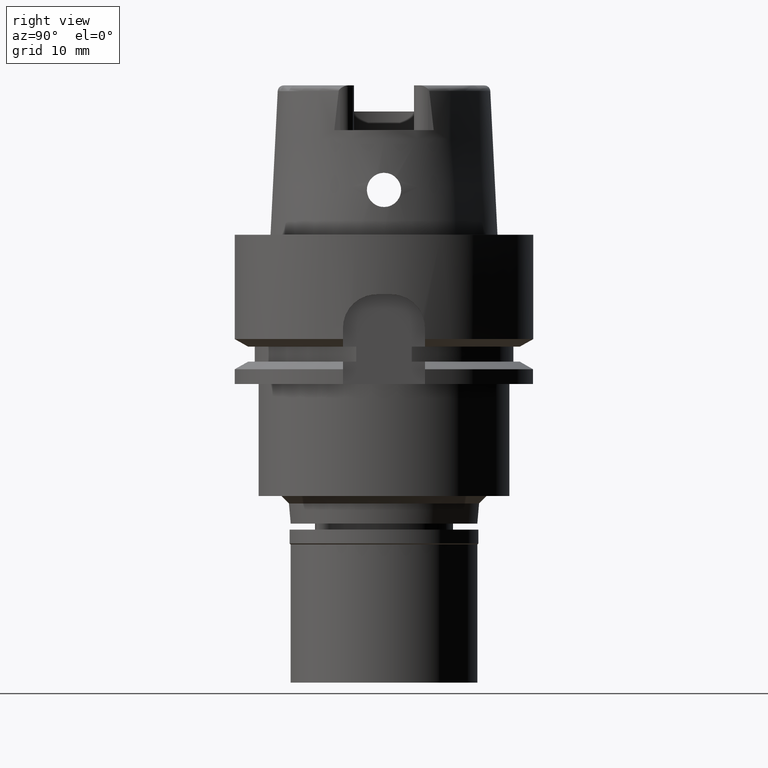
[diagram: clean part render]
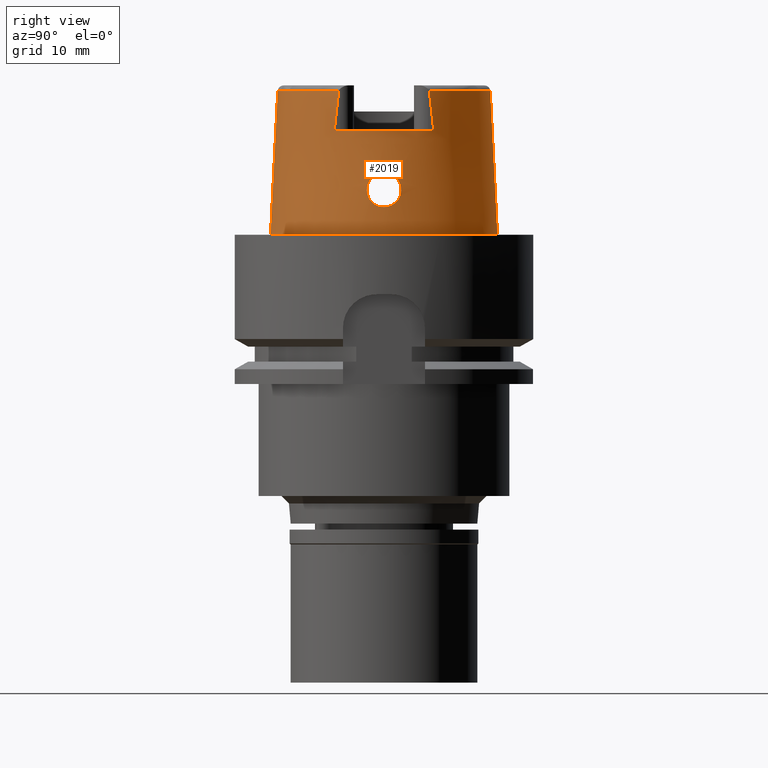
[diagram: same view with one face highlighted and labeled with its STEP entity id]
A machine part, right view. The second image highlights one B-rep face of the part: STEP entity #2019.
In plain terms, the highlighted conical surface has half-angle 2.862 deg.
Its self-contained STEP definition (entity closure, byte-faithful):
#3 = CARTESIAN_POINT ( 'NONE',  ( 14.70884834798660812, 2.286205315762714019, 6.292987651990300968 ) ) ;
#71 = CARTESIAN_POINT ( 'NONE',  ( 14.78353128680934780, -0.2842508077835871338, 8.287348239703142383 ) ) ;
#102 = CARTESIAN_POINT ( 'NONE',  ( 14.76781784534300179, -0.8726212665700366911, 8.128040841715369780 ) ) ;
#108 = CARTESIAN_POINT ( 'NONE',  ( 14.98148096618578684, 0.8665457444468621651, 3.869470621995149795 ) ) ;
#135 = CARTESIAN_POINT ( 'NONE',  ( 14.85758912622376116, -1.829465614575531029, 4.604014456383411336 ) ) ;
#136 = DIRECTION ( 'NONE',  ( 0.9046212760392207120, -0.4262163147243098749, 0.0000000000000000000 ) ) ;
#140 = CARTESIAN_POINT ( 'NONE',  ( 14.87669115224341709, 1.724760763707318123, 4.476552553082335351 ) ) ;
#158 = CARTESIAN_POINT ( 'NONE',  ( 14.72980081961681087, -1.616212748003853727, 7.636443271970279945 ) ) ;
#187 = CARTESIAN_POINT ( 'NONE',  ( 14.72895214010360831, -1.629820688235393833, 7.622863067295217121 ) ) ;
#193 = CARTESIAN_POINT ( 'NONE',  ( 14.71589640493664142, 1.851366427317992835, 7.367163868592538911 ) ) ;
#219 = CARTESIAN_POINT ( 'NONE',  ( 14.72916548330934638, -1.626404356299882892, 7.626288619780838829 ) ) ;
#242 = CARTESIAN_POINT ( 'NONE',  ( 14.83552753177912109, -1.939738082404806052, 4.764066888185314319 ) ) ;
#372 = CARTESIAN_POINT ( 'NONE',  ( 14.81276530912530376, 2.042075185751323740, 4.941057186217218344 ) ) ;
#393 = FACE_OUTER_BOUND ( 'NONE', #2035, .T. ) ;
#398 = CARTESIAN_POINT ( 'NONE',  ( 14.98371403018677483, 0.8374727235060828168, 3.857867046279936929 ) ) ;
#420 = DIRECTION ( 'NONE',  ( 0.0000000000000000000, -1.000000000000000000, 0.0000000000000000000 ) ) ;
#426 = CARTESIAN_POINT ( 'NONE',  ( 14.77594883662318637, 2.186224250497776467, 5.266873562246448870 ) ) ;
#452 = CARTESIAN_POINT ( 'NONE',  ( 14.93067085953368789, 1.362081213815593772, 4.144859030776751219 ) ) ;
#533 = VERTEX_POINT ( 'NONE', #5331 ) ;
#554 = CARTESIAN_POINT ( 'NONE',  ( 14.76871277928789716, -0.8491451473262121574, 8.137552740377595129 ) ) ;
#560 = CARTESIAN_POINT ( 'NONE',  ( 14.83348555201899899, 1.949410989434698038, 4.777198438805157821 ) ) ;
#583 = CARTESIAN_POINT ( 'NONE',  ( 14.74979801730460949, -1.265122560551811493, 7.920811763709590281 ) ) ;
#584 = DIRECTION ( 'NONE',  ( 0.0000000000000000000, 0.0000000000000000000, -1.000000000000000000 ) ) ;
#588 = CARTESIAN_POINT ( 'NONE',  ( 14.74496504134874719, 1.355034789440248799, 7.858533769056999851 ) ) ;
#609 = CARTESIAN_POINT ( 'NONE',  ( 14.70734865897784260, -2.012829096110601679, 7.114972761336104234 ) ) ;
#613 = CARTESIAN_POINT ( 'NONE',  ( 14.72809239045508178, 1.644127852899764930, 7.608383307052595690 ) ) ;
#634 = CARTESIAN_POINT ( 'NONE',  ( 14.76141212801586455, -2.229000420779350122, 5.427573020362298273 ) ) ;
#642 = CARTESIAN_POINT ( 'NONE',  ( 14.74746264624862313, 1.308959093175378730, 7.891234945837613424 ) ) ;
#664 = CARTESIAN_POINT ( 'NONE',  ( 14.82171604948061017, -2.003677436401228196, 4.869988757427218040 ) ) ;
#668 = CARTESIAN_POINT ( 'NONE',  ( 14.78499286951999636, 0.2787127313286555386, 8.300000000000004263 ) ) ;
#685 = CARTESIAN_POINT ( 'NONE',  ( 14.74943395429339965, -1.272009482207280051, 7.916246199872477796 ) ) ;
#712 = CARTESIAN_POINT ( 'NONE',  ( 14.95814736307774773, -1.125923090369231216, 3.993190079444903340 ) ) ;
#744 = CARTESIAN_POINT ( 'NONE',  ( 15.01500049747999910, 0.0000000000000000000, 3.700000000000000178 ) ) ;
#787 = CARTESIAN_POINT ( 'NONE',  ( 14.91762709435253242, 1.459190661110717491, 4.221667655721447865 ) ) ;
#810 = CARTESIAN_POINT ( 'NONE',  ( 0.0000000000000000000, 1.342457523729000028E-14, 9.619975707600000092 ) ) ;
#846 = CARTESIAN_POINT ( 'NONE',  ( 14.80064675282035047, 2.092115382990954675, 5.044267703016496185 ) ) ;
#872 = CARTESIAN_POINT ( 'NONE',  ( 14.70294343544076199, 2.140333083698386041, 6.842061476059803304 ) ) ;
#917 = CARTESIAN_POINT ( 'NONE',  ( 0.0000000000000000000, 1.459778984583999657E-14, 19.23995141520000018 ) ) ;
#945 = CARTESIAN_POINT ( 'NONE',  ( 14.78499286952000169, -0.1391443178106435696, 8.300000000000004263 ) ) ;
#977 = CARTESIAN_POINT ( 'NONE',  ( 14.88524741299193899, 1.673832983257152351, 4.420767604272294093 ) ) ;
#1001 = CARTESIAN_POINT ( 'NONE',  ( 14.87704102443295895, -1.720762379260878605, 4.473081528567432130 ) ) ;
#1013 = AXIS2_PLACEMENT_3D ( 'NONE', #5401, #3719, #4154 ) ;
#1032 = CARTESIAN_POINT ( 'NONE',  ( 14.72948462022060490, -1.621288160458078442, 7.631394471253989842 ) ) ;
#1036 = CARTESIAN_POINT ( 'NONE',  ( 14.73566080914286580, 1.519391864529637370, 7.727097925152691005 ) ) ;
#1057 = CARTESIAN_POINT ( 'NONE',  ( 14.72809821711131661, -2.300253994376866729, 5.867101065373637070 ) ) ;
#1061 = CARTESIAN_POINT ( 'NONE',  ( 14.78499286951999991, -6.884507511411997731E-14, 8.300000000000000711 ) ) ;
#1087 = CARTESIAN_POINT ( 'NONE',  ( 14.78936246628043705, -2.135424661762108212, 5.145562157656038416 ) ) ;
#1094 = CARTESIAN_POINT ( 'NONE',  ( 14.74806662226026077, 1.297686443530055467, 7.898955230017068452 ) ) ;
#1113 = CARTESIAN_POINT ( 'NONE',  ( 14.75228631504130661, -1.217310660985102544, 7.951655185243266644 ) ) ;
#1118 = CARTESIAN_POINT ( 'NONE',  ( 14.76711544728780723, 0.8906701632827568327, 8.120547637668753538 ) ) ;
#1126 = LINE ( 'NONE', #2833, #2069 ) ;
#1248 = CARTESIAN_POINT ( 'NONE',  ( 14.97158300251817842, -0.9853043043074320995, 3.921252939951850980 ) ) ;
#1271 = CARTESIAN_POINT ( 'NONE',  ( 14.89626255972978264, 1.604314165349137733, 4.351879905648150526 ) ) ;
#1297 = CARTESIAN_POINT ( 'NONE',  ( 14.70267385795741966, 2.192066129368408500, 6.697352079336138075 ) ) ;
#1322 = B_SPLINE_CURVE_WITH_KNOTS ( 'NONE', 3,
 ( #2215, #945, #71, #5226, #1787, #4373, #2989, #3945, #554, #1396, #102, #1824, #4402, #4702, #3166, #4060, #3213, #1113, #4920, #583, #685, #1530, #2299, #3608, #4004, #4869, #2763, #158, #1032, #219, #5310, #2818, #187, #4438, #1934, #5280, #2742, #5253, #4462, #609, #4838, #1877, #4531, #3189, #2324, #4030, #4946, #1482, #3579, #4488, #4893, #3550, #1423, #1455, #1057, #3631, #1909, #634, #2350, #5333, #1504, #1854, #1087, #2792, #5361, #4510, #1957, #664, #2377, #4082, #242, #3656, #3242, #3977, #135, #3132, #1001, #2715, #4555, #2045, #1983, #1642, #3374, #1578, #712, #3287, #1248, #5503, #3349, #1669, #3708, #5438, #4586, #744 ),
 .UNSPECIFIED., .F., .F.,
 ( 4, 2, 2, 1, 1, 1, 2, 2, 2, 2, 1, 1, 1, 2, 2, 2, 2, 2, 1, 1, 1, 2, 2, 2, 2, 1, 1, 2, 2, 2, 2, 2, 2, 2, 2, 1, 1, 2, 2, 2, 2, 1, 2, 2, 2, 1, 1, 2, 2, 2, 2, 1, 1, 2, 2, 4 ),
 ( 0.0000000000000000000, 0.06250000000019570456, 0.09375000000029362623, 0.1093750000003425871, 0.1171875000003670259, 0.1210937500003791689, 0.1230468750003851225, 0.1250000000003910761, 0.1562500000004830303, 0.1718750000005291878, 0.1796875000005522804, 0.1835937500005638268, 0.1855468750005697387, 0.1865234375005728751, 0.1875000000005760115, 0.2187500000006795120, 0.2343750000007312762, 0.2421875000007574497, 0.2460937500007711887, 0.2480468750007791823, 0.2490234375007831513, 0.2495117187507826517, 0.2500000000007821521, 0.3125000000007183698, 0.3437500000006863399, 0.3593750000006701306, 0.3671875000006618039, 0.3710937500006578627, 0.3750000000006538659, 0.4375000000005919709, 0.4687500000005608847, 0.4843750000005455636, 0.5000000000005301315, 0.5625000000004679590, 0.5937500000004367617, 0.6093750000004212186, 0.6171875000004135581, 0.6210937500004095613, 0.6250000000004055645, 0.6562500000003740341, 0.6718750000003582690, 0.6796875000003503864, 0.6835937500003462786, 0.6875000000003421707, 0.7187500000003099743, 0.7343750000002937650, 0.7421875000002858824, 0.7460937500002817746, 0.7500000000002776668, 0.8125000000002089440, 0.8437500000001744160, 0.8593750000001572076, 0.8671875000001485478, 0.8710937500001442180, 0.8750000000001398881, 1.000000000000000000 ),
 .UNSPECIFIED. ) ;
#1369 = CONICAL_SURFACE ( 'NONE', #4682, 14.71899189528999941, 0.04996004983832824653 ) ;
#1396 = CARTESIAN_POINT ( 'NONE',  ( 14.76817753171319403, -0.8632320482275176454, 8.131866818024022336 ) ) ;
#1402 = CARTESIAN_POINT ( 'NONE',  ( 14.99024636951172162, 0.7469238850255360829, 3.824062172421589079 ) ) ;
#1406 = ORIENTED_EDGE ( 'NONE', *, *, #1766, .T. ) ;
#1423 = CARTESIAN_POINT ( 'NONE',  ( 14.71767625970584881, -2.299002582692895036, 6.076948641595521394 ) ) ;
#1431 = CARTESIAN_POINT ( 'NONE',  ( 15.01500049747999910, 0.0000000000000000000, 3.700000000000000178 ) ) ;
#1455 = CARTESIAN_POINT ( 'NONE',  ( 14.71946357150760498, -2.299931417574677894, 6.038631396491794590 ) ) ;
#1461 = CARTESIAN_POINT ( 'NONE',  ( 14.76533985865924059, 0.9349772983312547581, 8.101496177720878933 ) ) ;
#1482 = CARTESIAN_POINT ( 'NONE',  ( 14.70276236840918926, -2.228093348375105531, 6.589865896510453958 ) ) ;
#1486 = CARTESIAN_POINT ( 'NONE',  ( 14.76094114605789009, 1.037300661243630406, 8.053152699869613684 ) ) ;
#1504 = CARTESIAN_POINT ( 'NONE',  ( 14.78432779017200360, -2.153809964252402231, 5.192649884755313749 ) ) ;
#1507 = CARTESIAN_POINT ( 'NONE',  ( 14.75280736771560264, 1.208700089781218345, 7.958806937004049509 ) ) ;
#1530 = CARTESIAN_POINT ( 'NONE',  ( 14.74919042734249786, -1.276605933416255612, 7.913187108496542166 ) ) ;
#1535 = AXIS2_PLACEMENT_3D ( 'NONE', #917, #3523, #5535 ) ;
#1536 = LINE ( 'NONE', #1961, #2428 ) ;
#1578 = CARTESIAN_POINT ( 'NONE',  ( 14.95142920726499902, -1.189364500588956819, 4.029933525653157211 ) ) ;
#1638 = AXIS2_PLACEMENT_3D ( 'NONE', #4405, #584, #136 ) ;
#1640 = ORIENTED_EDGE ( 'NONE', *, *, #3243, .F. ) ;
#1642 = CARTESIAN_POINT ( 'NONE',  ( 14.91207770429849866, -1.508033510741091154, 4.254843883684625183 ) ) ;
#1659 = CARTESIAN_POINT ( 'NONE',  ( 15.00364376493542551, 0.5092072746806731720, 3.755833491668792767 ) ) ;
#1669 = CARTESIAN_POINT ( 'NONE',  ( 14.97932994340861157, -0.8935037242512267053, 3.880632326865703252 ) ) ;
#1686 = CARTESIAN_POINT ( 'NONE',  ( 15.00009478601523583, 0.5826109664716828673, 3.773707586095184752 ) ) ;
#1718 = CARTESIAN_POINT ( 'NONE',  ( 14.70429371488598669, 2.243043492811253703, 6.514198421688762508 ) ) ;
#1751 = CARTESIAN_POINT ( 'NONE',  ( 0.0000000000000000000, -14.23797715755999782, 19.23995141520000018 ) ) ;
#1766 = EDGE_CURVE ( 'NONE', #3079, #2857, #3967, .T. ) ;
#1778 = CARTESIAN_POINT ( 'NONE',  ( 0.0000000000000000000, 15.20000663301000010, 5.684341886080998387E-14 ) ) ;
#1787 = CARTESIAN_POINT ( 'NONE',  ( 14.77731956028908478, -0.5813496651888623301, 8.226695616749765350 ) ) ;
#1798 = VERTEX_POINT ( 'NONE', #3359 ) ;
#1824 = CARTESIAN_POINT ( 'NONE',  ( 14.76759430107143878, -0.8784006114821019118, 8.125659336874468508 ) ) ;
#1829 = ORIENTED_EDGE ( 'NONE', *, *, #4730, .F. ) ;
#1850 = EDGE_CURVE ( 'NONE', #3200, #5148, #3026, .T. ) ;
#1854 = CARTESIAN_POINT ( 'NONE',  ( 14.78733735408576422, -2.142864407732263388, 5.164395642324983271 ) ) ;
#1877 = CARTESIAN_POINT ( 'NONE',  ( 14.70450261064885744, -2.081531398458294380, 6.979308741385742643 ) ) ;
#1909 = CARTESIAN_POINT ( 'NONE',  ( 14.75496046942780737, -2.246734291453549748, 5.502193996447674706 ) ) ;
#1915 = CARTESIAN_POINT ( 'NONE',  ( 14.72879180672478405, 1.632483996171784746, 7.620184531736852840 ) ) ;
#1934 = CARTESIAN_POINT ( 'NONE',  ( 14.72894505127029774, -1.629935077670802590, 7.622748176182636115 ) ) ;
#1957 = CARTESIAN_POINT ( 'NONE',  ( 14.81742000035763951, -2.022576272778048079, 4.904278878625637716 ) ) ;
#1961 = CARTESIAN_POINT ( 'NONE',  ( 0.0000000000000000000, -14.23797715755999782, 19.23995141520000018 ) ) ;
#1983 = CARTESIAN_POINT ( 'NONE',  ( 14.89100076858903243, -1.637317728023333530, 4.384665109146335560 ) ) ;
#1992 = ORIENTED_EDGE ( 'NONE', *, *, #1850, .T. ) ;
#1994 = EDGE_CURVE ( 'NONE', #2359, #2848, #3070, .T. ) ;
#2019 = ADVANCED_FACE ( 'NONE', ( #393, #4683 ), #1369, .T. ) ;
#2035 = EDGE_LOOP ( 'NONE', ( #2214, #3177, #3588, #1406, #1640, #5265, #1992, #3002 ) ) ;
#2045 = CARTESIAN_POINT ( 'NONE',  ( 14.89006592629558767, -1.643013560709093435, 4.390467205843563647 ) ) ;
#2051 = CARTESIAN_POINT ( 'NONE',  ( 12.87999628661342122, -6.461605149370305945, 15.82216418297479166 ) ) ;
#2069 = VECTOR ( 'NONE', #4294, 1000.000000000000227 ) ;
#2095 = CARTESIAN_POINT ( 'NONE',  ( 14.76163505720337987, 2.230607858128184962, 5.419250816161911288 ) ) ;
#2109 = CARTESIAN_POINT ( 'NONE',  ( 12.87999235482999794, -6.068467509103999902, 19.23976180114000201 ) ) ;
#2118 = CARTESIAN_POINT ( 'NONE',  ( 14.89480408139289835, 1.613594842508850213, 4.360975711331008142 ) ) ;
#2143 = CARTESIAN_POINT ( 'NONE',  ( 14.82509907386347869, 1.988183648684178184, 4.841186137639502007 ) ) ;
#2214 = ORIENTED_EDGE ( 'NONE', *, *, #4533, .T. ) ;
#2215 = CARTESIAN_POINT ( 'NONE',  ( 14.78499286951999991, -6.884507511411997731E-14, 8.300000000000000711 ) ) ;
#2227 = CARTESIAN_POINT ( 'NONE',  ( 12.88000000001000167, 6.659963896840999986, 14.00000000000000000 ) ) ;
#2247 = CARTESIAN_POINT ( 'NONE',  ( 14.90604220457860229, 1.540040924966880276, 4.291568336726134802 ) ) ;
#2281 = CARTESIAN_POINT ( 'NONE',  ( 14.96044863515595935, 1.107243322772910599, 3.978464806295221035 ) ) ;
#2283 = EDGE_LOOP ( 'NONE', ( #3317, #1829 ) ) ;
#2299 = CARTESIAN_POINT ( 'NONE',  ( 14.74915329026594790, -1.277308904772056053, 7.912721628543296859 ) ) ;
#2324 = CARTESIAN_POINT ( 'NONE',  ( 14.70337101300722971, -2.119800079374476898, 6.892472962618038324 ) ) ;
#2329 = CARTESIAN_POINT ( 'NONE',  ( 14.74847246292092606, 1.290096246375824984, 7.904119940134513023 ) ) ;
#2350 = CARTESIAN_POINT ( 'NONE',  ( 14.77198895600194639, -2.195978878831934988, 5.315014128293909401 ) ) ;
#2359 = VERTEX_POINT ( 'NONE', #4225 ) ;
#2358 = CARTESIAN_POINT ( 'NONE',  ( 14.72867472671834221, 1.634432253401980173, 7.618219121032653085 ) ) ;
#2377 = CARTESIAN_POINT ( 'NONE',  ( 14.82848128314058478, -1.972826740579962879, 4.817474388850833122 ) ) ;
#2380 = CARTESIAN_POINT ( 'NONE',  ( 14.72849940320244677, 1.637350214644473834, 7.615270147479063390 ) ) ;
#2404 = VERTEX_POINT ( 'NONE', #4257 ) ;
#2428 = VECTOR ( 'NONE', #3661, 1000.000000000000227 ) ;
#2435 = CARTESIAN_POINT ( 'NONE',  ( 12.88000000001000167, -6.659963896840999986, 14.00000000000000000 ) ) ;
#2468 = CARTESIAN_POINT ( 'NONE',  ( 12.88000426042808577, 6.264427332782261715, 17.56902546104429419 ) ) ;
#2498 = CARTESIAN_POINT ( 'NONE',  ( 14.89874937048043790, 1.588294339997736948, 4.336436091976805685 ) ) ;
#2531 = CARTESIAN_POINT ( 'NONE',  ( 14.79665847415519231, 2.107828384264458066, 5.079440115074616457 ) ) ;
#2557 = CARTESIAN_POINT ( 'NONE',  ( 14.79479495241799469, 2.115032889418538176, 5.096087091493139987 ) ) ;
#2582 = CARTESIAN_POINT ( 'NONE',  ( 14.70307380549220788, 2.133187362036828016, 6.860002858765145817 ) ) ;
#2689 = CARTESIAN_POINT ( 'NONE',  ( 14.85945574196216867, 1.820889407647668490, 4.592856233123024268 ) ) ;
#2715 = CARTESIAN_POINT ( 'NONE',  ( 14.88463421484657800, -1.675827824554474432, 4.424491581681046171 ) ) ;
#2722 = CARTESIAN_POINT ( 'NONE',  ( 14.74279795622872946, 1.394442728223871386, 7.829370843480877973 ) ) ;
#2742 = CARTESIAN_POINT ( 'NONE',  ( 14.72141866946028443, -1.755152768534203211, 7.496973021725292341 ) ) ;
#2745 = CARTESIAN_POINT ( 'NONE',  ( 14.77912791463194786, 0.5826487076375956864, 8.248701685571836251 ) ) ;
#2763 = CARTESIAN_POINT ( 'NONE',  ( 14.73105974217153680, -1.595855065834778985, 7.656383870241845635 ) ) ;
#2769 = CARTESIAN_POINT ( 'NONE',  ( 14.73066733280887952, 1.603003007484241849, 7.651077491294331345 ) ) ;
#2792 = CARTESIAN_POINT ( 'NONE',  ( 14.79060930388553174, -2.130790916911621036, 5.134093906432315890 ) ) ;
#2798 = CARTESIAN_POINT ( 'NONE',  ( 14.75631241698415685, 1.137656487417744167, 8.000363067003027240 ) ) ;
#2818 = CARTESIAN_POINT ( 'NONE',  ( 14.72897168129306067, -1.629507018597964985, 7.623178059539734264 ) ) ;
#2832 = CARTESIAN_POINT ( 'NONE',  ( 12.88000000001000167, 6.659963896840999986, 14.00000000000000000 ) ) ;
#2833 = CARTESIAN_POINT ( 'NONE',  ( 0.0000000000000000000, 14.23797715755999782, 19.23995141520000018 ) ) ;
#2848 = VERTEX_POINT ( 'NONE', #1751 ) ;
#2855 = CARTESIAN_POINT ( 'NONE',  ( 0.0000000000000000000, -15.20000663301000010, 1.527666881883999820E-13 ) ) ;
#2857 = VERTEX_POINT ( 'NONE', #1778 ) ;
#2989 = CARTESIAN_POINT ( 'NONE',  ( 14.77224969526151632, -0.7504315452606894477, 8.174775488229311549 ) ) ;
#3002 = ORIENTED_EDGE ( 'NONE', *, *, #4149, .T. ) ;
#3003 = CARTESIAN_POINT ( 'NONE',  ( 14.70255504530193846, 2.174209788304058311, 6.751929027931112159 ) ) ;
#3024 = DIRECTION ( 'NONE',  ( 0.0000000000000000000, 0.0000000000000000000, -1.000000000000000000 ) ) ;
#3026 = B_SPLINE_CURVE_WITH_KNOTS ( 'NONE', 3,
 ( #4599, #2468, #4094, #2832 ),
 .UNSPECIFIED., .F., .F.,
 ( 4, 4 ),
 ( 0.0000000000000000000, 1.000000000000000000 ),
 .UNSPECIFIED. ) ;
#3070 = CIRCLE ( 'NONE', #1638, 14.23797715756000315 ) ;
#3079 = VERTEX_POINT ( 'NONE', #2855 ) ;
#3109 = CARTESIAN_POINT ( 'NONE',  ( 14.98233880085520298, 0.8555171635388999496, 3.865009476152062362 ) ) ;
#3132 = CARTESIAN_POINT ( 'NONE',  ( 14.87054952517670436, -1.757719365218778362, 4.516135905360576963 ) ) ;
#3166 = CARTESIAN_POINT ( 'NONE',  ( 14.75791429775186536, -1.102961272654618075, 8.018639627108557377 ) ) ;
#3171 = CARTESIAN_POINT ( 'NONE',  ( 14.74608686374362065, 1.334479646751227655, 7.873420511264598964 ) ) ;
#3177 = ORIENTED_EDGE ( 'NONE', *, *, #1994, .T. ) ;
#3189 = CARTESIAN_POINT ( 'NONE',  ( 14.70352691453532046, -2.113722125168135513, 6.906774030889148541 ) ) ;
#3194 = CARTESIAN_POINT ( 'NONE',  ( 14.72890820762632913, 1.630547541446876858, 7.622132767565903855 ) ) ;
#3200 = VERTEX_POINT ( 'NONE', #5425 ) ;
#3206 = DIRECTION ( 'NONE',  ( 0.0000000000000000000, 0.0000000000000000000, -1.000000000000000000 ) ) ;
#3213 = CARTESIAN_POINT ( 'NONE',  ( 14.75363946421451899, -1.190479773372431493, 7.968039648371502359 ) ) ;
#3242 = CARTESIAN_POINT ( 'NONE',  ( 14.83932649246535185, -1.921461049514929131, 4.735849371579420541 ) ) ;
#3243 = EDGE_CURVE ( 'NONE', #533, #2857, #1126, .T. ) ;
#3287 = CARTESIAN_POINT ( 'NONE',  ( 14.96726447614644151, -1.031976710274443265, 3.944210301339806435 ) ) ;
#3317 = ORIENTED_EDGE ( 'NONE', *, *, #4295, .F. ) ;
#3349 = CARTESIAN_POINT ( 'NONE',  ( 14.97809045975354891, -0.9087043565665412492, 3.887105153696834403 ) ) ;
#3359 = CARTESIAN_POINT ( 'NONE',  ( 15.01500049747999910, 0.0000000000000000000, 3.700000000000000178 ) ) ;
#3365 = CARTESIAN_POINT ( 'NONE',  ( 14.93865161753148385, 1.297501775311243666, 4.099437656411337727 ) ) ;
#3374 = CARTESIAN_POINT ( 'NONE',  ( 14.92935449852581620, -1.380129507201574235, 4.153857573810187276 ) ) ;
#3392 = CARTESIAN_POINT ( 'NONE',  ( 14.90244606697565821, 1.564221168210256474, 4.313564913488068697 ) ) ;
#3395 = VERTEX_POINT ( 'NONE', #3924 ) ;
#3426 = CARTESIAN_POINT ( 'NONE',  ( 14.73141587695740462, 2.293502586221564776, 5.823495551252472424 ) ) ;
#3498 = AXIS2_PLACEMENT_3D ( 'NONE', #4050, #3206, #3625 ) ;
#3523 = DIRECTION ( 'NONE',  ( 0.0000000000000000000, 0.0000000000000000000, -1.000000000000000000 ) ) ;
#3550 = CARTESIAN_POINT ( 'NONE',  ( 14.71456559358172811, -2.295400163581996278, 6.149906830063701868 ) ) ;
#3579 = CARTESIAN_POINT ( 'NONE',  ( 14.70725146920118220, -2.271296696667286508, 6.369860449282080950 ) ) ;
#3584 = CARTESIAN_POINT ( 'NONE',  ( 14.70427108765023583, 2.079072153534203604, 6.991204345736832693 ) ) ;
#3588 = ORIENTED_EDGE ( 'NONE', *, *, #4333, .T. ) ;
#3608 = CARTESIAN_POINT ( 'NONE',  ( 14.74230191971250115, -1.406047901650634646, 7.826369459267463746 ) ) ;
#3614 = CARTESIAN_POINT ( 'NONE',  ( 14.72268477588709068, 1.734727623510328165, 7.511263497818259971 ) ) ;
#3625 = DIRECTION ( 'NONE',  ( 0.8882768779220027167, 0.4593083802296007434, 0.0000000000000000000 ) ) ;
#3631 = CARTESIAN_POINT ( 'NONE',  ( 14.73740417387155333, -2.288223965521709147, 5.723351743406544401 ) ) ;
#3636 = CARTESIAN_POINT ( 'NONE',  ( 14.73773361949264782, 1.484091672822593688, 7.758016757747205894 ) ) ;
#3656 = CARTESIAN_POINT ( 'NONE',  ( 14.83794318965353476, -1.928155063096674171, 4.746073152904815018 ) ) ;
#3661 = DIRECTION ( 'NONE',  ( 0.0000000000000000000, -0.04993926899656212642, -0.9987522562738413434 ) ) ;
#3708 = CARTESIAN_POINT ( 'NONE',  ( 14.97982148424780036, -0.8874131963921597643, 3.878068404993340046 ) ) ;
#3719 = DIRECTION ( 'NONE',  ( 0.0000000000000000000, 0.0000000000000000000, 1.000000000000000000 ) ) ;
#3771 = CIRCLE ( 'NONE', #1535, 14.23797715755999782 ) ;
#3790 = CARTESIAN_POINT ( 'NONE',  ( 14.72510000375245909, 2.299199412092552741, 5.929779096513302150 ) ) ;
#3818 = CARTESIAN_POINT ( 'NONE',  ( 14.80665991487999378, 2.067953991456097373, 4.991963697528101207 ) ) ;
#3843 = CARTESIAN_POINT ( 'NONE',  ( 14.72329514493106473, 2.299987528917623703, 5.962788372706077311 ) ) ;
#3917 = B_SPLINE_CURVE_WITH_KNOTS ( 'NONE', 3,
 ( #1431, #5096, #4411, #1659, #1686, #5065, #1402, #4627, #398, #3109, #108, #4689, #2281, #3365, #452, #787, #4818, #2247, #3392, #2498, #1271, #2118, #977, #140, #2689, #4656, #560, #2143, #372, #3818, #846, #2531, #2557, #426, #2095, #5518, #3982, #3426, #4272, #3790, #3843, #4246, #3, #1718, #5129, #1297, #3003, #4713, #872, #2582, #4300, #3584, #4925, #4465, #193, #4443, #3614, #4035, #4008, #613, #2380, #2358, #1915, #3194, #4115, #2769, #1036, #3636, #4493, #2722, #588, #3171, #642, #1094, #2329, #4898, #1507, #2798, #1486, #5287, #4873, #1461, #4537, #5314, #1118, #4515, #2745, #668, #1061 ),
 .UNSPECIFIED., .F., .F.,
 ( 4, 2, 2, 1, 1, 2, 2, 2, 2, 2, 1, 2, 2, 2, 2, 2, 1, 2, 2, 2, 2, 2, 2, 2, 2, 1, 1, 2, 2, 2, 2, 1, 1, 1, 1, 1, 2, 2, 2, 2, 2, 1, 1, 2, 2, 2, 2, 1, 1, 2, 2, 4 ),
 ( 0.0000000000000000000, 0.06249999999988695154, 0.09374999999983045507, 0.1093749999998021444, 0.1171874999997879752, 0.1210937499997809252, 0.1249999999997738753, 0.1874999999996600775, 0.2187499999996031230, 0.2343749999995747568, 0.2421874999995604905, 0.2460937499995533573, 0.2499999999995461963, 0.2812499999994897970, 0.3124999999994333977, 0.3437499999993769428, 0.3593749999993487432, 0.3671874999993345323, 0.3749999999993202660, 0.4374999999992069122, 0.4687499999991500133, 0.4843749999991213695, 0.4999999999990927257, 0.5624999999989778177, 0.5937499999989204191, 0.6093749999988916644, 0.6171874999988773425, 0.6210937499988700150, 0.6249999999988627986, 0.6874999999987452259, 0.7187499999986864951, 0.7343749999986570742, 0.7421874999986423083, 0.7460937499986350918, 0.7480468749986314281, 0.7490234374986296517, 0.7495117187486286525, 0.7499999999986276533, 0.7812499999988007371, 0.7968749999988872235, 0.8046874999989305222, 0.8085937499989522825, 0.8105468749989633848, 0.8115234374989690469, 0.8124999999989747090, 0.8437499999991485700, 0.8593749999992352784, 0.8671874999992786881, 0.8710937499993003374, 0.8730468749993111066, 0.8749999999993218758, 1.000000000000000000 ),
 .UNSPECIFIED. ) ;
#3924 = CARTESIAN_POINT ( 'NONE',  ( 14.78499286951999991, -6.884507511411997731E-14, 8.300000000000000711 ) ) ;
#3945 = CARTESIAN_POINT ( 'NONE',  ( 14.76993171643134062, -0.8162572405157628719, 8.150449937432949099 ) ) ;
#3967 = CIRCLE ( 'NONE', #1013, 15.20000663301000010 ) ;
#3977 = CARTESIAN_POINT ( 'NONE',  ( 14.84897899300126056, -1.874404310356276859, 4.664961216209789541 ) ) ;
#3982 = CARTESIAN_POINT ( 'NONE',  ( 14.73849372625887000, 2.283477778846778605, 5.715463592410985783 ) ) ;
#4004 = CARTESIAN_POINT ( 'NONE',  ( 14.73731322973443270, -1.491757206061370855, 7.752241761626596173 ) ) ;
#4008 = CARTESIAN_POINT ( 'NONE',  ( 14.72728666678593079, 1.657559654261544724, 7.594586816968694976 ) ) ;
#4030 = CARTESIAN_POINT ( 'NONE',  ( 14.70331610145964696, -2.122033033467349394, 6.887168763617625977 ) ) ;
#4035 = CARTESIAN_POINT ( 'NONE',  ( 14.72570842674991098, 1.683931612177709480, 7.566908941513504239 ) ) ;
#4050 = CARTESIAN_POINT ( 'NONE',  ( 0.0000000000000000000, 1.342457523729000028E-14, 14.00000000000000000 ) ) ;
#4060 = CARTESIAN_POINT ( 'NONE',  ( 14.75626720799203895, -1.137456607659073304, 7.999470194620832864 ) ) ;
#4082 = CARTESIAN_POINT ( 'NONE',  ( 14.83194418996444952, -1.956775742090769876, 4.790948031791979034 ) ) ;
#4094 = CARTESIAN_POINT ( 'NONE',  ( 12.88001670702531598, 6.461541546609030462, 15.82237496627156936 ) ) ;
#4115 = CARTESIAN_POINT ( 'NONE',  ( 14.72897162154003681, 1.629492673767413802, 7.623193086129206542 ) ) ;
#4146 = CARTESIAN_POINT ( 'NONE',  ( 12.87998480851645056, -6.264498854164544994, 17.56875134582231368 ) ) ;
#4149 = EDGE_CURVE ( 'NONE', #5148, #2404, #5102, .T. ) ;
#4154 = DIRECTION ( 'NONE',  ( 0.0000000000000000000, -1.000000000000000000, 0.0000000000000000000 ) ) ;
#4225 = CARTESIAN_POINT ( 'NONE',  ( 12.87999235482999794, -6.068467509103999902, 19.23976180114000201 ) ) ;
#4246 = CARTESIAN_POINT ( 'NONE',  ( 14.71406044070898389, 2.300049224763834221, 6.144951639461478266 ) ) ;
#4257 = CARTESIAN_POINT ( 'NONE',  ( 12.88000000001000167, -6.659963896840999986, 14.00000000000000000 ) ) ;
#4272 = CARTESIAN_POINT ( 'NONE',  ( 14.72920898907621279, 2.295956629733523879, 5.859173630892842155 ) ) ;
#4294 = DIRECTION ( 'NONE',  ( 0.0000000000000000000, 0.04993926899656212642, -0.9987522562738413434 ) ) ;
#4295 = EDGE_CURVE ( 'NONE', #1798, #3395, #3917, .T. ) ;
#4300 = CARTESIAN_POINT ( 'NONE',  ( 14.70316458318627717, 2.128786717770733805, 6.870819045355063714 ) ) ;
#4333 = EDGE_CURVE ( 'NONE', #2848, #3079, #1536, .T. ) ;
#4373 = CARTESIAN_POINT ( 'NONE',  ( 14.77403099919012242, -0.6940052000260308329, 8.193146594063835053 ) ) ;
#4402 = CARTESIAN_POINT ( 'NONE',  ( 14.76520709172436163, -0.9397137392346848195, 8.100200529922533477 ) ) ;
#4405 = CARTESIAN_POINT ( 'NONE',  ( 0.0000000000000000000, 1.459778984583999657E-14, 19.23995141520000018 ) ) ;
#4411 = CARTESIAN_POINT ( 'NONE',  ( 15.01216131434386369, 0.2892617628192192258, 3.713380421805251519 ) ) ;
#4438 = CARTESIAN_POINT ( 'NONE',  ( 14.72894740192179874, -1.629897061659997481, 7.622786359665958855 ) ) ;
#4443 = CARTESIAN_POINT ( 'NONE',  ( 14.72032078236326313, 1.774994588816264818, 7.463238833075190648 ) ) ;
#4462 = CARTESIAN_POINT ( 'NONE',  ( 14.70908610932443139, -1.977317371656565070, 7.177218298111321282 ) ) ;
#4465 = CARTESIAN_POINT ( 'NONE',  ( 14.71335163281356095, 1.896726642870411039, 7.303092389872690049 ) ) ;
#4488 = CARTESIAN_POINT ( 'NONE',  ( 14.70928593586299726, -2.282011951315904952, 6.296377938122159179 ) ) ;
#4493 = CARTESIAN_POINT ( 'NONE',  ( 14.74145531237500251, 1.418445424570413893, 7.810745794135832476 ) ) ;
#4510 = CARTESIAN_POINT ( 'NONE',  ( 14.80517417293975058, -2.074782006277391844, 5.004531343260840259 ) ) ;
#4515 = CARTESIAN_POINT ( 'NONE',  ( 14.76721472501559873, 0.8881463648314960047, 8.121608339780562957 ) ) ;
#4531 = CARTESIAN_POINT ( 'NONE',  ( 14.70377975280873173, -2.104433637919441047, 6.928327330148085217 ) ) ;
#4533 = EDGE_CURVE ( 'NONE', #2404, #2359, #5402, .T. ) ;
#4537 = CARTESIAN_POINT ( 'NONE',  ( 14.76639185839194113, 0.9089374352595486206, 8.112804899950624815 ) ) ;
#4555 = CARTESIAN_POINT ( 'NONE',  ( 14.88789267672699701, -1.656189432504292958, 4.404028214597730972 ) ) ;
#4586 = CARTESIAN_POINT ( 'NONE',  ( 15.01500049748000798, -0.2875035635713323878, 3.699999999999999289 ) ) ;
#4599 = CARTESIAN_POINT ( 'NONE',  ( 12.88000642478999858, 6.068395837171999929, 19.23995141520000018 ) ) ;
#4613 = EDGE_CURVE ( 'NONE', #533, #3200, #3771, .T. ) ;
#4627 = CARTESIAN_POINT ( 'NONE',  ( 14.98574360250674253, 0.8103726428922147784, 3.847338291338944227 ) ) ;
#4656 = CARTESIAN_POINT ( 'NONE',  ( 14.85058644499019742, 1.867006390286439554, 4.654736456147379187 ) ) ;
#4682 = AXIS2_PLACEMENT_3D ( 'NONE', #810, #3024, #420 ) ;
#4683 = FACE_BOUND ( 'NONE', #2283, .T. ) ;
#4689 = CARTESIAN_POINT ( 'NONE',  ( 14.97211963841371940, 0.9852319898304190415, 3.918198109100089699 ) ) ;
#4702 = CARTESIAN_POINT ( 'NONE',  ( 14.76254134875580171, -1.002543100474160731, 8.071382481370131146 ) ) ;
#4713 = CARTESIAN_POINT ( 'NONE',  ( 14.70277337650409066, 2.150872384112259006, 6.815106529042394889 ) ) ;
#4730 = EDGE_CURVE ( 'NONE', #3395, #1798, #1322, .T. ) ;
#4818 = CARTESIAN_POINT ( 'NONE',  ( 14.91310040126140102, 1.491596977303247806, 4.248715428064867794 ) ) ;
#4838 = CARTESIAN_POINT ( 'NONE',  ( 14.70535003485844250, -2.059696689897924315, 7.024114667794215450 ) ) ;
#4869 = CARTESIAN_POINT ( 'NONE',  ( 14.73231278969615765, -1.575466960666038529, 7.676104574334723374 ) ) ;
#4873 = CARTESIAN_POINT ( 'NONE',  ( 14.76437919039990909, 0.9579855228070393025, 8.091067039117596948 ) ) ;
#4893 = CARTESIAN_POINT ( 'NONE',  ( 14.71314478545244953, -2.292722928690628770, 6.186483723940743751 ) ) ;
#4898 = CARTESIAN_POINT ( 'NONE',  ( 14.74876045483736675, 1.284696013807242743, 7.907764096509708018 ) ) ;
#4920 = CARTESIAN_POINT ( 'NONE',  ( 14.75063890575814440, -1.249108476088670816, 7.931304236828329302 ) ) ;
#4925 = CARTESIAN_POINT ( 'NONE',  ( 14.70693175492834825, 2.017990185374119783, 7.113643816041738788 ) ) ;
#4946 = CARTESIAN_POINT ( 'NONE',  ( 14.70192203347248672, -2.184504394964452700, 6.735967918010225652 ) ) ;
#5065 = CARTESIAN_POINT ( 'NONE',  ( 14.99370662395890896, 0.6922339275792173119, 3.806312339432969871 ) ) ;
#5096 = CARTESIAN_POINT ( 'NONE',  ( 15.01500049748000976, 0.1430262828765575811, 3.700000000000001066 ) ) ;
#5102 = CIRCLE ( 'NONE', #3498, 14.49998341749000730 ) ;
#5129 = CARTESIAN_POINT ( 'NONE',  ( 14.70331942151626592, 2.224931728551029497, 6.587787508885204701 ) ) ;
#5148 = VERTEX_POINT ( 'NONE', #2227 ) ;
#5226 = CARTESIAN_POINT ( 'NONE',  ( 14.77914653867740391, -0.5065138973234631914, 8.244801504513898038 ) ) ;
#5253 = CARTESIAN_POINT ( 'NONE',  ( 14.71551356316517101, -1.855954510887930509, 7.366726195024627444 ) ) ;
#5265 = ORIENTED_EDGE ( 'NONE', *, *, #4613, .T. ) ;
#5280 = CARTESIAN_POINT ( 'NONE',  ( 14.72900270378712406, -1.628975627584244190, 7.623711897690339079 ) ) ;
#5287 = CARTESIAN_POINT ( 'NONE',  ( 14.76237924827760750, 1.004875060777659534, 8.069158429940713972 ) ) ;
#5310 = CARTESIAN_POINT ( 'NONE',  ( 14.72904470539947575, -1.628337539456031768, 7.624351795364410656 ) ) ;
#5314 = CARTESIAN_POINT ( 'NONE',  ( 14.76682797686955517, 0.8979533740463090385, 8.117473815994790343 ) ) ;
#5331 = CARTESIAN_POINT ( 'NONE',  ( 0.0000000000000000000, 14.23797715755999782, 19.23995141520000018 ) ) ;
#5333 = CARTESIAN_POINT ( 'NONE',  ( 14.77750220502096568, -2.177863819250303035, 5.258579906013666871 ) ) ;
#5361 = CARTESIAN_POINT ( 'NONE',  ( 14.79786671459586422, -2.103604988160888922, 5.067853605966121222 ) ) ;
#5401 = CARTESIAN_POINT ( 'NONE',  ( 0.0000000000000000000, 1.342457523729000028E-14, 5.684341886080998387E-14 ) ) ;
#5402 = B_SPLINE_CURVE_WITH_KNOTS ( 'NONE', 3,
 ( #2435, #2051, #4146, #2109 ),
 .UNSPECIFIED., .F., .F.,
 ( 4, 4 ),
 ( 0.0000000000000000000, 1.000000000000000000 ),
 .UNSPECIFIED. ) ;
#5425 = CARTESIAN_POINT ( 'NONE',  ( 12.88000642478999858, 6.068395837171999929, 19.23995141520000018 ) ) ;
#5438 = CARTESIAN_POINT ( 'NONE',  ( 15.00351347275112346, -0.5887822049295964311, 3.754668947780596788 ) ) ;
#5503 = CARTESIAN_POINT ( 'NONE',  ( 14.97620123050061736, -0.9315650298649904570, 3.896984939981143814 ) ) ;
#5518 = CARTESIAN_POINT ( 'NONE',  ( 14.74382187333706895, 2.273242704839799622, 5.642106352793759605 ) ) ;
#5535 = DIRECTION ( 'NONE',  ( 0.0000000000000000000, 1.000000000000000000, 0.0000000000000000000 ) ) ;